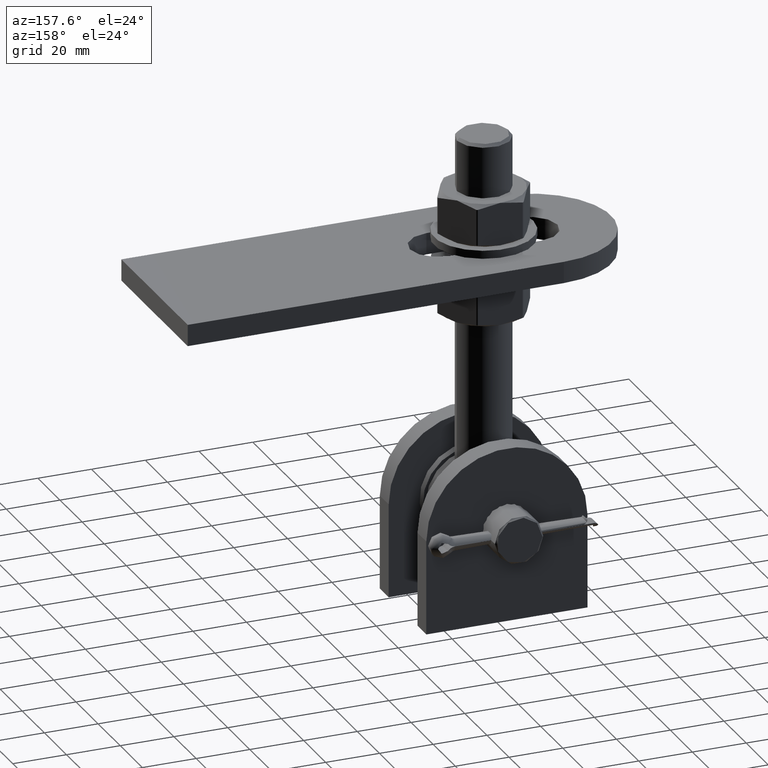
[diagram: clean part render]
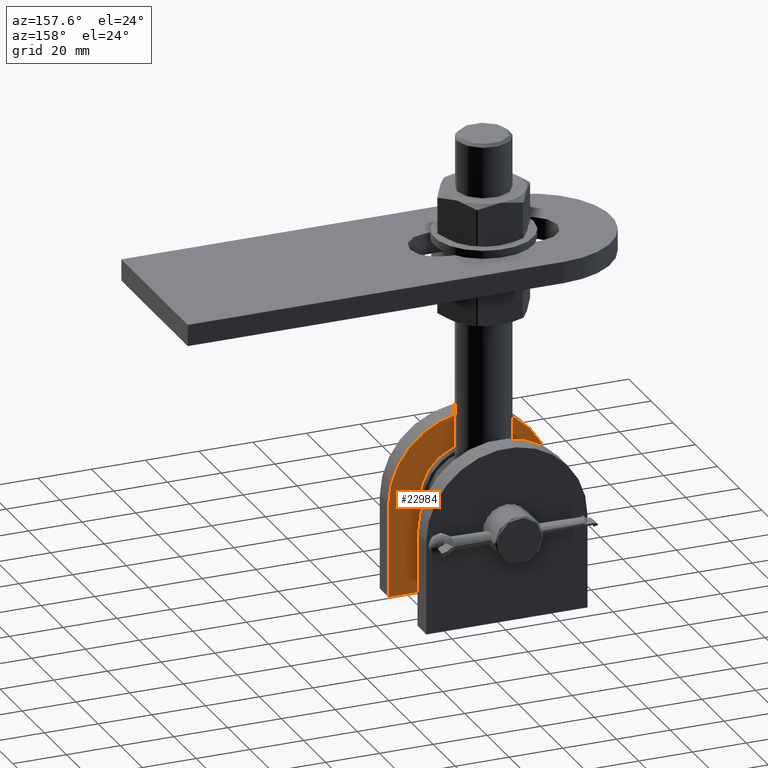
[diagram: same view with one face highlighted and labeled with its STEP entity id]
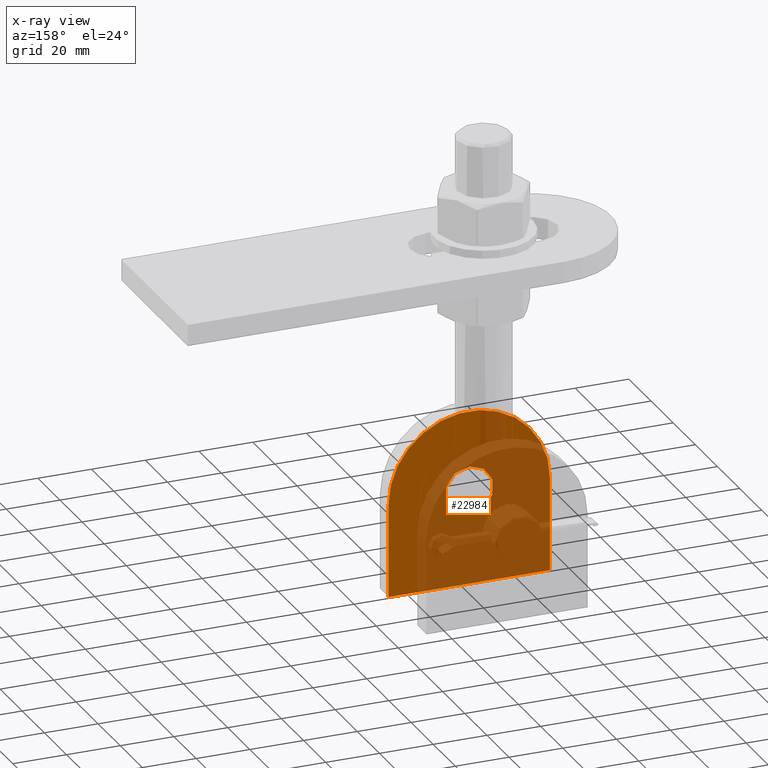
[diagram: x-ray of the same camera — body ghosted, the highlighted face saturated]
A machine part, auxiliary view. The second image highlights one B-rep face of the part: STEP entity #22984.
The next image is the same camera in x-ray: the body ghosted, the highlighted face saturated — about 67% of this face is hidden behind the body in this view.
In plain terms, the highlighted planar face has unit normal (0, -1, 0).
Its self-contained STEP definition (entity closure, byte-faithful):
#147 = EDGE_CURVE ( 'NONE', #6687, #31372, #19258, .T. ) ;
#1227 = EDGE_CURVE ( 'NONE', #9873, #9873, #29838, .T. ) ;
#4398 = DIRECTION ( 'NONE',  ( 0.000000000000000000, 0.000000000000000000, 1.000000000000000000 ) ) ;
#4666 = CARTESIAN_POINT ( 'NONE',  ( -30.00000000000000000, 4.000000000000003553, -32.50000000000000000 ) ) ;
#6687 = VERTEX_POINT ( 'NONE', #12824 ) ;
#6803 = CARTESIAN_POINT ( 'NONE',  ( -29.99999999999999645, 4.000000000000003553, 2.499999999999995115 ) ) ;
#6873 = CIRCLE ( 'NONE', #26778, 30.00000000000000000 ) ;
#6982 = CARTESIAN_POINT ( 'NONE',  ( 30.00000000000000355, 4.000000000000003553, 2.499999999999988010 ) ) ;
#7027 = DIRECTION ( 'NONE',  ( 0.000000000000000000, -1.000000000000000000, 0.000000000000000000 ) ) ;
#7297 = AXIS2_PLACEMENT_3D ( 'NONE', #21650, #7027, #9804 ) ;
#8019 = LINE ( 'NONE', #24206, #14914 ) ;
#8571 = CARTESIAN_POINT ( 'NONE',  ( 3.469446951953614189E-15, 4.000000000000003553, 11.60000000000000320 ) ) ;
#8868 = EDGE_LOOP ( 'NONE', ( #18842 ) ) ;
#9804 = DIRECTION ( 'NONE',  ( 0.000000000000000000, -0.000000000000000000, -1.000000000000000000 ) ) ;
#9873 = VERTEX_POINT ( 'NONE', #8571 ) ;
#10835 = VERTEX_POINT ( 'NONE', #19728 ) ;
#10919 = ORIENTED_EDGE ( 'NONE', *, *, #12723, .T. ) ;
#11506 = ORIENTED_EDGE ( 'NONE', *, *, #16040, .T. ) ;
#12238 = ORIENTED_EDGE ( 'NONE', *, *, #17019, .T. ) ;
#12723 = EDGE_CURVE ( 'NONE', #31372, #10835, #29831, .T. ) ;
#12824 = CARTESIAN_POINT ( 'NONE',  ( 30.00000000000000000, 4.000000000000003553, -32.50000000000001421 ) ) ;
#14158 = ORIENTED_EDGE ( 'NONE', *, *, #147, .T. ) ;
#14329 = DIRECTION ( 'NONE',  ( -9.912705577010326782E-17, -0.000000000000000000, -1.000000000000000000 ) ) ;
#14706 = DIRECTION ( 'NONE',  ( 0.000000000000000000, 1.000000000000000000, -0.000000000000000000 ) ) ;
#14914 = VECTOR ( 'NONE', #14329, 1000.000000000000000 ) ;
#16040 = EDGE_CURVE ( 'NONE', #10835, #19856, #6873, .T. ) ;
#16385 = CARTESIAN_POINT ( 'NONE',  ( -30.00000000000000000, 4.000000000000003553, -32.50000000000000000 ) ) ;
#17019 = EDGE_CURVE ( 'NONE', #19856, #6687, #8019, .T. ) ;
#18417 = EDGE_LOOP ( 'NONE', ( #10919, #11506, #12238, #14158 ) ) ;
#18842 = ORIENTED_EDGE ( 'NONE', *, *, #1227, .F. ) ;
#19258 = LINE ( 'NONE', #16385, #21944 ) ;
#19728 = CARTESIAN_POINT ( 'NONE',  ( -29.99999999999999289, 4.000000000000003553, 2.500000000000000888 ) ) ;
#19856 = VERTEX_POINT ( 'NONE', #6982 ) ;
#21565 = DIRECTION ( 'NONE',  ( 0.000000000000000000, 1.000000000000000000, 0.000000000000000000 ) ) ;
#21650 = CARTESIAN_POINT ( 'NONE',  ( 6.938893903907228378E-15, 4.000000000000003553, 2.499999999999995115 ) ) ;
#21944 = VECTOR ( 'NONE', #28697, 1000.000000000000000 ) ;
#22732 = FACE_BOUND ( 'NONE', #8868, .T. ) ;
#22984 = ADVANCED_FACE ( 'NONE', ( #25771, #22732 ), #24290, .F. ) ;
#23862 = DIRECTION ( 'NONE',  ( 9.912705577010326782E-17, -0.000000000000000000, 1.000000000000000000 ) ) ;
#23890 = CARTESIAN_POINT ( 'NONE',  ( 3.469446951953614189E-15, 4.000000000000003553, 2.500000000000002220 ) ) ;
#24206 = CARTESIAN_POINT ( 'NONE',  ( 30.00000000000000000, 4.000000000000003553, -32.50000000000001421 ) ) ;
#24290 = PLANE ( 'NONE',  #7297 ) ;
#25771 = FACE_OUTER_BOUND ( 'NONE', #18417, .T. ) ;
#26778 = AXIS2_PLACEMENT_3D ( 'NONE', #26922, #14706, #27022 ) ;
#26922 = CARTESIAN_POINT ( 'NONE',  ( 6.938893903907228378E-15, 4.000000000000003553, 2.499999999999995115 ) ) ;
#27022 = DIRECTION ( 'NONE',  ( 0.000000000000000000, 0.000000000000000000, -1.000000000000000000 ) ) ;
#27645 = AXIS2_PLACEMENT_3D ( 'NONE', #23890, #21565, #4398 ) ;
#28697 = DIRECTION ( 'NONE',  ( -1.000000000000000000, -0.000000000000000000, 1.156482317317871478E-16 ) ) ;
#29080 = VECTOR ( 'NONE', #23862, 1000.000000000000000 ) ;
#29831 = LINE ( 'NONE', #6803, #29080 ) ;
#29838 = CIRCLE ( 'NONE', #27645, 9.099999999999999645 ) ;
#31372 = VERTEX_POINT ( 'NONE', #4666 ) ;